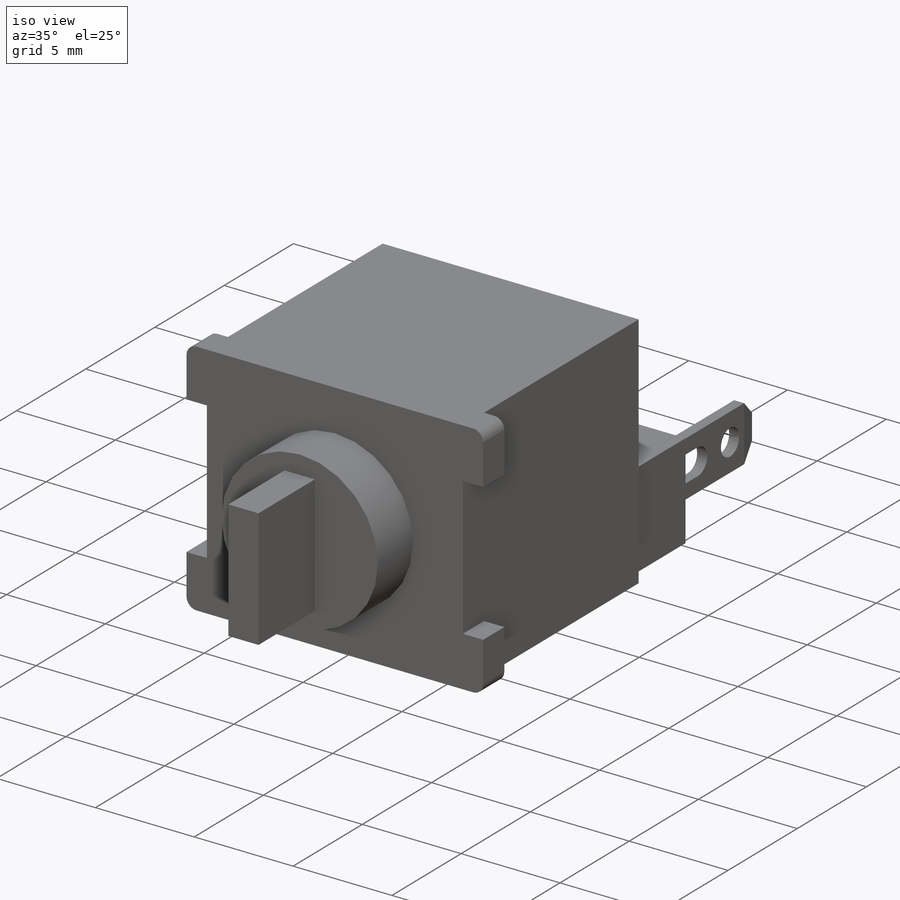
[diagram: iso view]
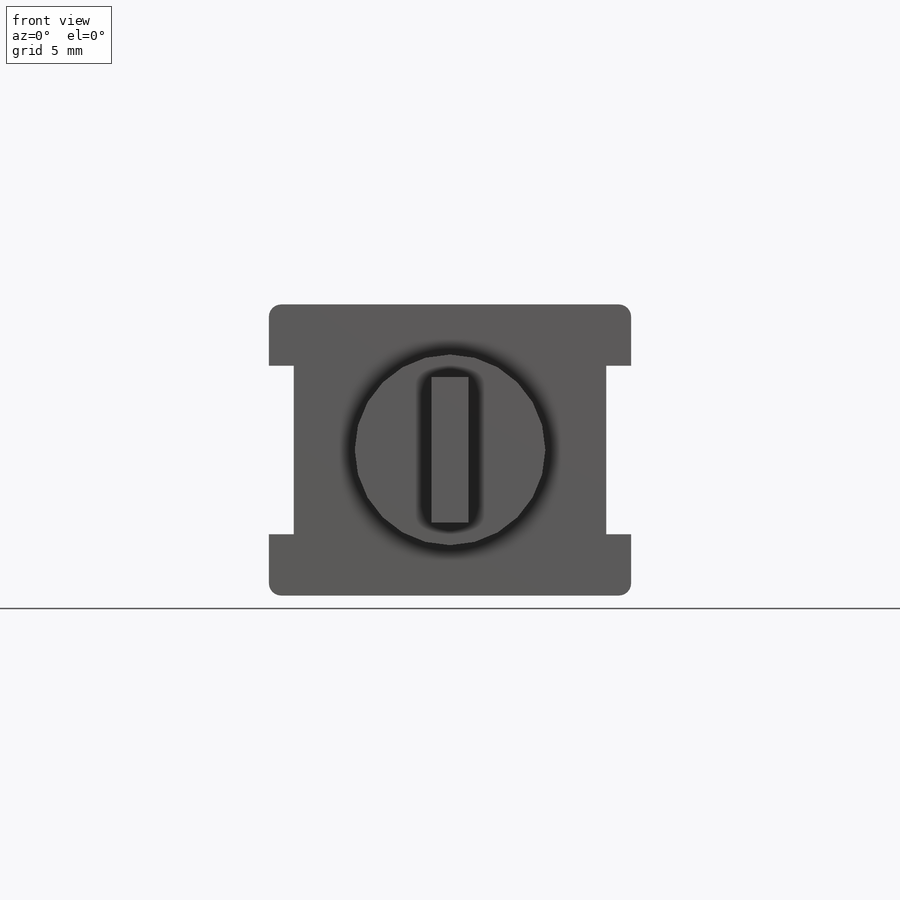
[diagram: front view]
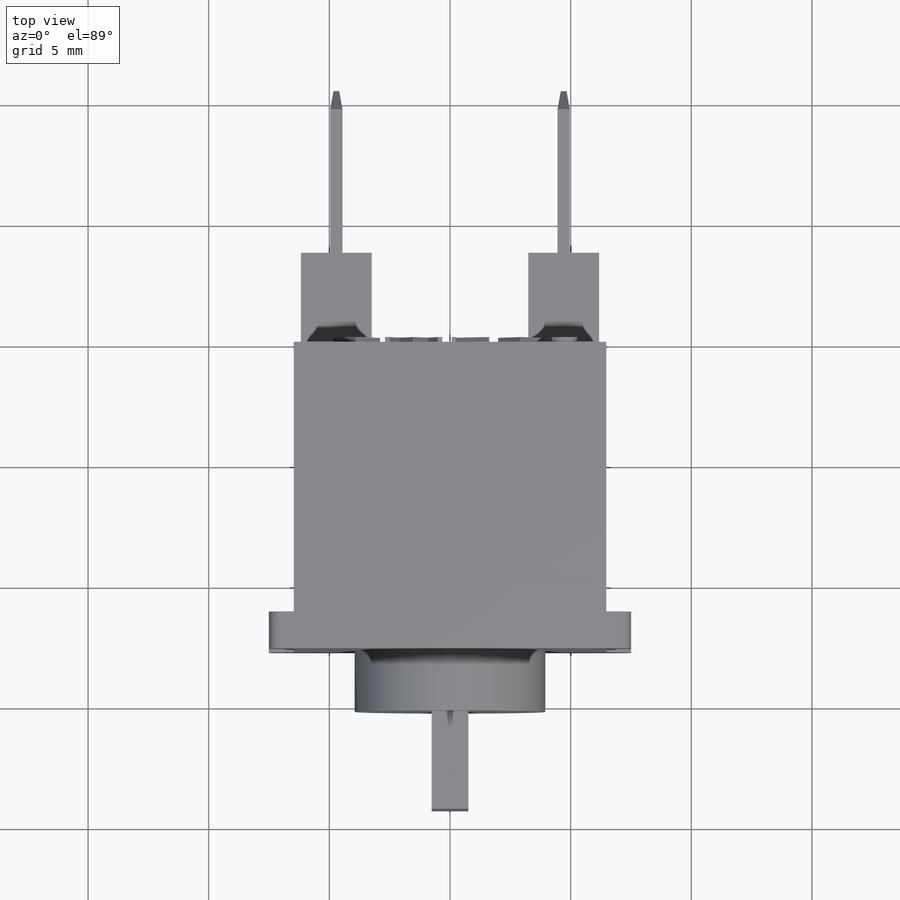
[diagram: top view]
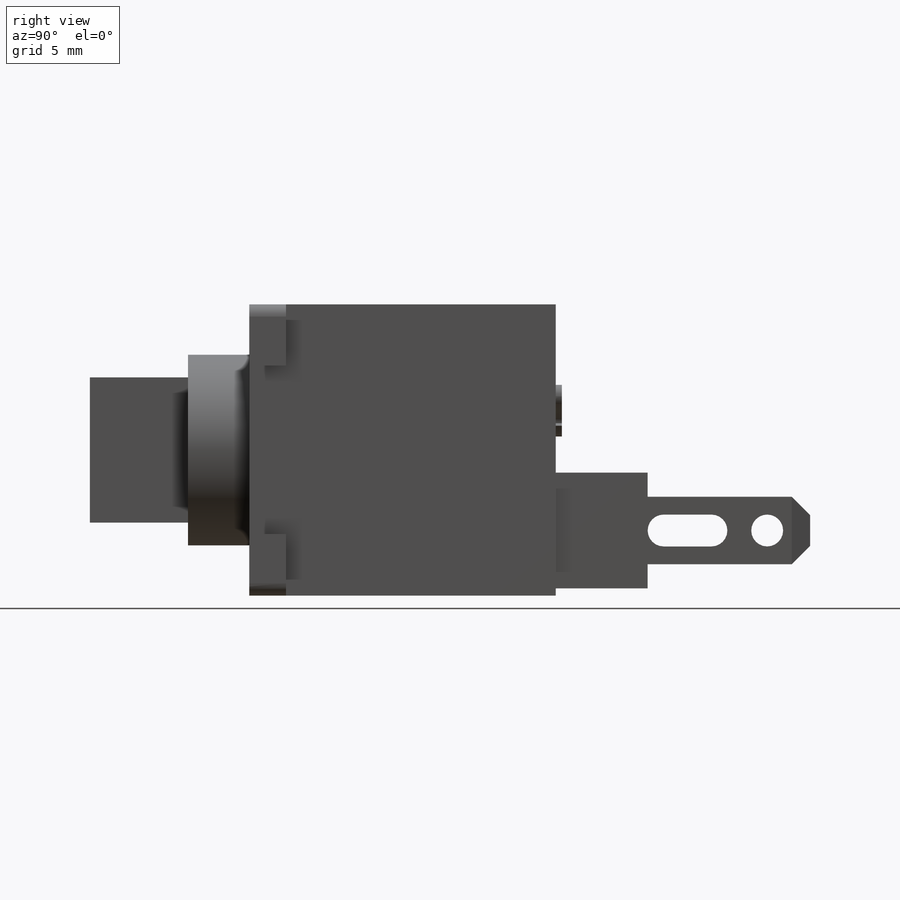
[diagram: right view]
SOLIDWORKS PART (.sldprt)
format: sldprt  version: not decoded by parser v0  size: 412,672 bytes
history: native  units: mm
features: sketch x8, extrude x7, chamfer x2, material x1, cut_extrude x1, mirror x1, fillet x1 (+11 scaffold rows collapsed)
feature tree (32):
  scaffold x11  (default folders/planes/origin — collapsed)
  material  "Matériau <non spécifié>"
  sketch  "Sketch1"  dims[D1=12.954mm D2=12.065mm]
  extrude  "Extrude1"  Depth=12.7mm
  sketch  "Sketch2"  dims[D1=~4.480607mm D2=~0.340211mm]
  extrude  "standoff"  Depth=3.81mm
  sketch  "Sketch3"  dims[D1=0.508mm D2=2.794mm]
  extrude  "metal"  Depth=6.731mm
  sketch  "Sketch4"  dims[c1.D1=~0.317461mm c1.D3=~0.791626mm c1.D4=~0.317461mm c2.D1=0.0mm c2.D2=2.54mm c2.D3=1.778mm c2.D4=1.3208mm c2.D5=2.54mm c2.D6=0.6604mm c3.D2=~3.267826mm c3.D5=~3.267826mm c3.D6=3.2004mm c3.D7=3.2004mm c4.D6=3.2004mm c4.D7=3.2004mm c5.D6=3.2004mm c5.D7=3.8608mm c6.D6=3.2004mm c6.D7=3.2004mm c7.D6=3.2004mm c7.D2=3.302mm]
  cut_extrude  "wire hole"  [1 undecoded]
  chamfer  "Chamfer1"  Distance=0.762mm Angle=45deg
  chamfer  "Chamfer2"  Distance=0.762mm Angle=10deg
  mirror  "connector mirror"
  sketch  "Sketch5"  dims[c1.D1=2.54mm c1.D2=~17.949302mm c1.D3=2.54mm c2.D2=15.0114mm]
  extrude  "tabs"  Depth=1.524mm
  fillet  "Fillet1"  Radius=0.508mm
  sketch  "Sketch6"
  extrude  "text"  Depth=0.254mm
  sketch  "Sketch7"  dims[D1=7.8994mm]
  extrude  "plunger"  Depth=2.54mm
  sketch  "Sketch8"  dims[D1=6.0198mm D2=1.524mm]
  extrude  "plunger I"  Depth=4.064mm
decode coverage: 17 of 20 modeling features carry decoded parameters
note: ~ marks probable driven/reference dimensions
note: 1 parameter value undecoded
note: suppression state not decoded; provenance and decode notes live in map.json
